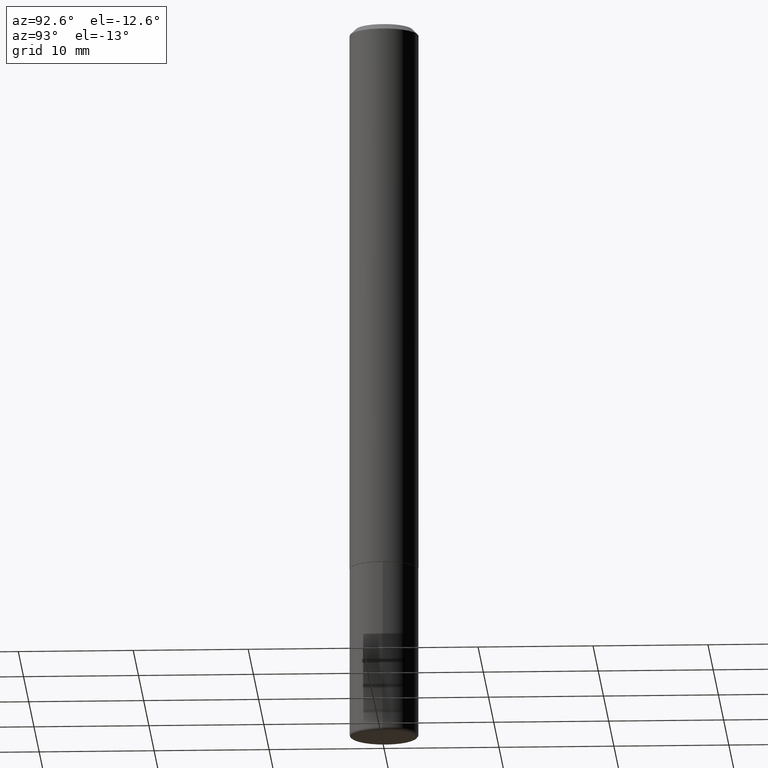
[diagram: clean part render]
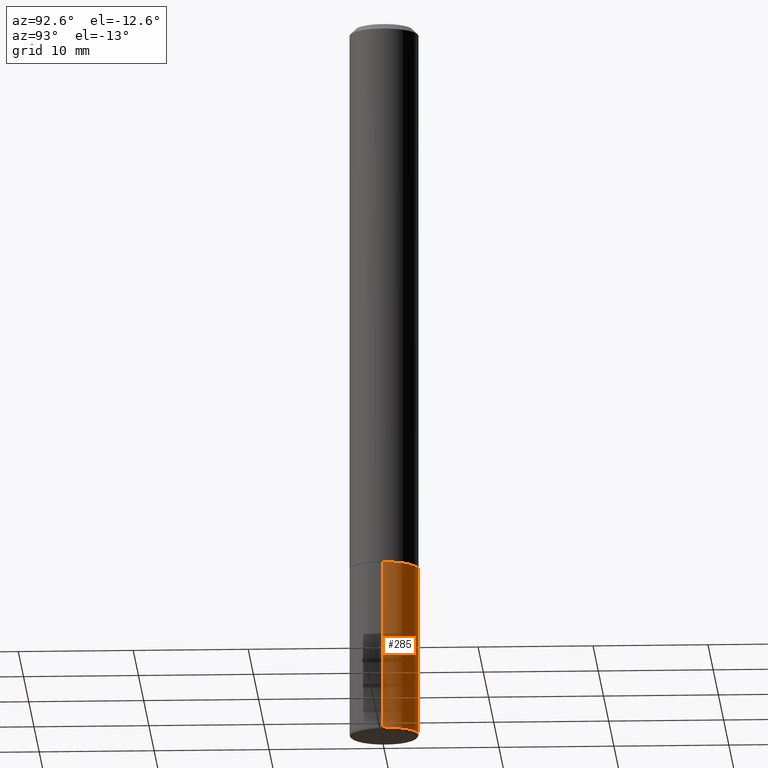
[diagram: same view with one face highlighted and labeled with its STEP entity id]
A machine part, auxiliary view. The second image highlights one B-rep face of the part: STEP entity #285.
In plain terms, the highlighted cylindrical surface (edge-blend (fillet) strip) has radius 2.9997 mm, axis along (-0, 0, 1).
Its self-contained STEP definition (entity closure, byte-faithful):
#6 = CIRCLE ( 'NONE', #376, 0.1180999999999999966 ) ;
#23 = ORIENTED_EDGE ( 'NONE', *, *, #169, .F. ) ;
#97 = EDGE_CURVE ( 'NONE', #401, #408, #312, .T. ) ;
#109 = FACE_OUTER_BOUND ( 'NONE', #361, .T. ) ;
#113 = VERTEX_POINT ( 'NONE', #149 ) ;
#138 = CYLINDRICAL_SURFACE ( 'NONE', #193, 0.1180999999999999966 ) ;
#149 = CARTESIAN_POINT ( 'NONE',  ( 0.1180999999999999966, -7.422540178246641541E-15, -1.889700000000000379 ) ) ;
#164 = CIRCLE ( 'NONE', #349, 0.1180999999999999966 ) ;
#169 = EDGE_CURVE ( 'NONE', #301, #113, #402, .T. ) ;
#175 = ORIENTED_EDGE ( 'NONE', *, *, #394, .F. ) ;
#193 = AXIS2_PLACEMENT_3D ( 'NONE', #233, #364, #222 ) ;
#195 = ORIENTED_EDGE ( 'NONE', *, *, #245, .T. ) ;
#199 = ORIENTED_EDGE ( 'NONE', *, *, #97, .T. ) ;
#206 = CARTESIAN_POINT ( 'NONE',  ( 4.621202403048053204E-29, -6.597852286011893278E-15, -1.889700000000000379 ) ) ;
#209 = CARTESIAN_POINT ( 'NONE',  ( 0.1180999999999999966, -8.246878922347480654E-16, 5.758764772215000440E-30 ) ) ;
#222 = DIRECTION ( 'NONE',  ( 1.000000000000000000, -6.982962677686266711E-15, 4.876176775795936353E-29 ) ) ;
#233 = CARTESIAN_POINT ( 'NONE',  ( 0.000000000000000000, 0.000000000000000000, 0.000000000000000000 ) ) ;
#245 = EDGE_CURVE ( 'NONE', #301, #401, #164, .T. ) ;
#250 = DIRECTION ( 'NONE',  ( -2.445468806185136597E-29, 3.491481338843145583E-15, 1.000000000000000000 ) ) ;
#261 = VECTOR ( 'NONE', #398, 39.37007874015748143 ) ;
#262 = CARTESIAN_POINT ( 'NONE',  ( 0.1181000000000001632, -9.443409577169056114E-15, -2.468500000000000139 ) ) ;
#284 = CARTESIAN_POINT ( 'NONE',  ( -0.1180999999999999966, -6.769136014540420790E-15, -1.889700000000000379 ) ) ;
#285 = ADVANCED_FACE ( 'NONE', ( #109 ), #138, .T. ) ;
#301 = VERTEX_POINT ( 'NONE', #262 ) ;
#312 = LINE ( 'NONE', #324, #261 ) ;
#323 = VECTOR ( 'NONE', #342, 39.37007874015748143 ) ;
#324 = CARTESIAN_POINT ( 'NONE',  ( -0.1180999999999999966, 8.391509709326782957E-16, -5.809262341591043784E-30 ) ) ;
#340 = DIRECTION ( 'NONE',  ( 1.000000000000000000, -6.982962677686265133E-15, 0.000000000000000000 ) ) ;
#342 = DIRECTION ( 'NONE',  ( -2.445468806185136877E-29, 3.491481338843145188E-15, 1.000000000000000000 ) ) ;
#346 = CARTESIAN_POINT ( 'NONE',  ( -0.1181000000000001632, -7.779570714001625710E-15, -2.468500000000000139 ) ) ;
#349 = AXIS2_PLACEMENT_3D ( 'NONE', #393, #392, #389 ) ;
#361 = EDGE_LOOP ( 'NONE', ( #195, #199, #175, #23 ) ) ;
#364 = DIRECTION ( 'NONE',  ( -2.445468806185136597E-29, 3.491481338843145583E-15, 1.000000000000000000 ) ) ;
#376 = AXIS2_PLACEMENT_3D ( 'NONE', #206, #250, #340 ) ;
#389 = DIRECTION ( 'NONE',  ( 1.000000000000000000, -6.982962677686265133E-15, 0.000000000000000000 ) ) ;
#392 = DIRECTION ( 'NONE',  ( -2.445468806185136597E-29, 3.491481338843145583E-15, 1.000000000000000000 ) ) ;
#393 = CARTESIAN_POINT ( 'NONE',  ( 6.036639748068010694E-29, -8.618721684934306273E-15, -2.468500000000000139 ) ) ;
#394 = EDGE_CURVE ( 'NONE', #113, #408, #6, .T. ) ;
#398 = DIRECTION ( 'NONE',  ( -2.445468806185136877E-29, 3.491481338843145188E-15, 1.000000000000000000 ) ) ;
#401 = VERTEX_POINT ( 'NONE', #346 ) ;
#402 = LINE ( 'NONE', #209, #323 ) ;
#408 = VERTEX_POINT ( 'NONE', #284 ) ;